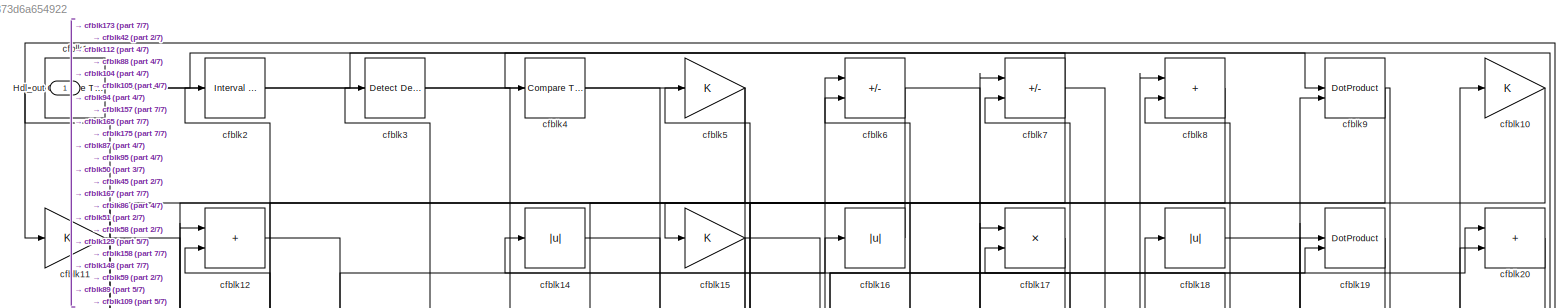
[diagram: root canvas - part 1/7, full width, top band]
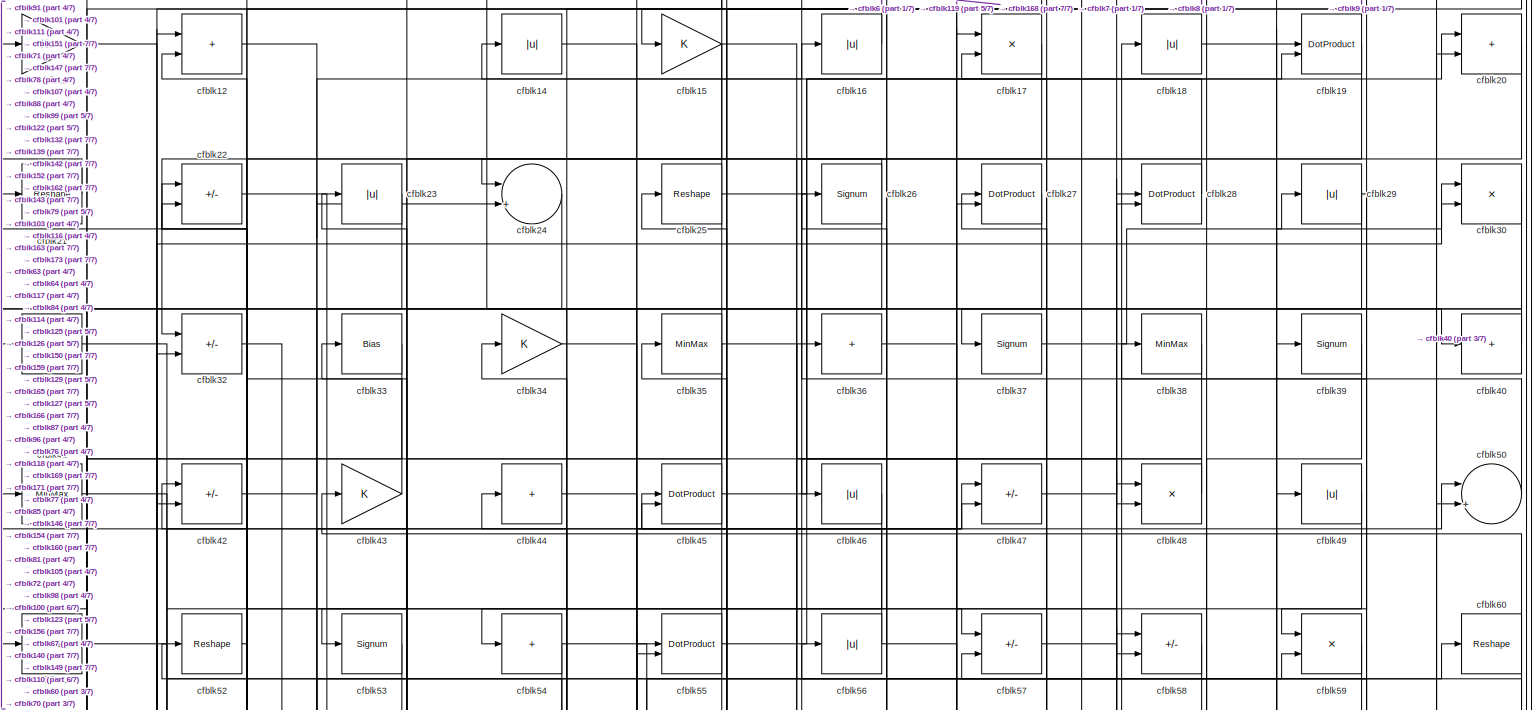
[diagram: root canvas - part 2/7, full width, top band]
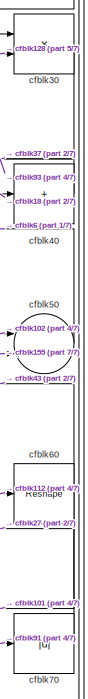
[diagram: root canvas - part 3/7, top right region]
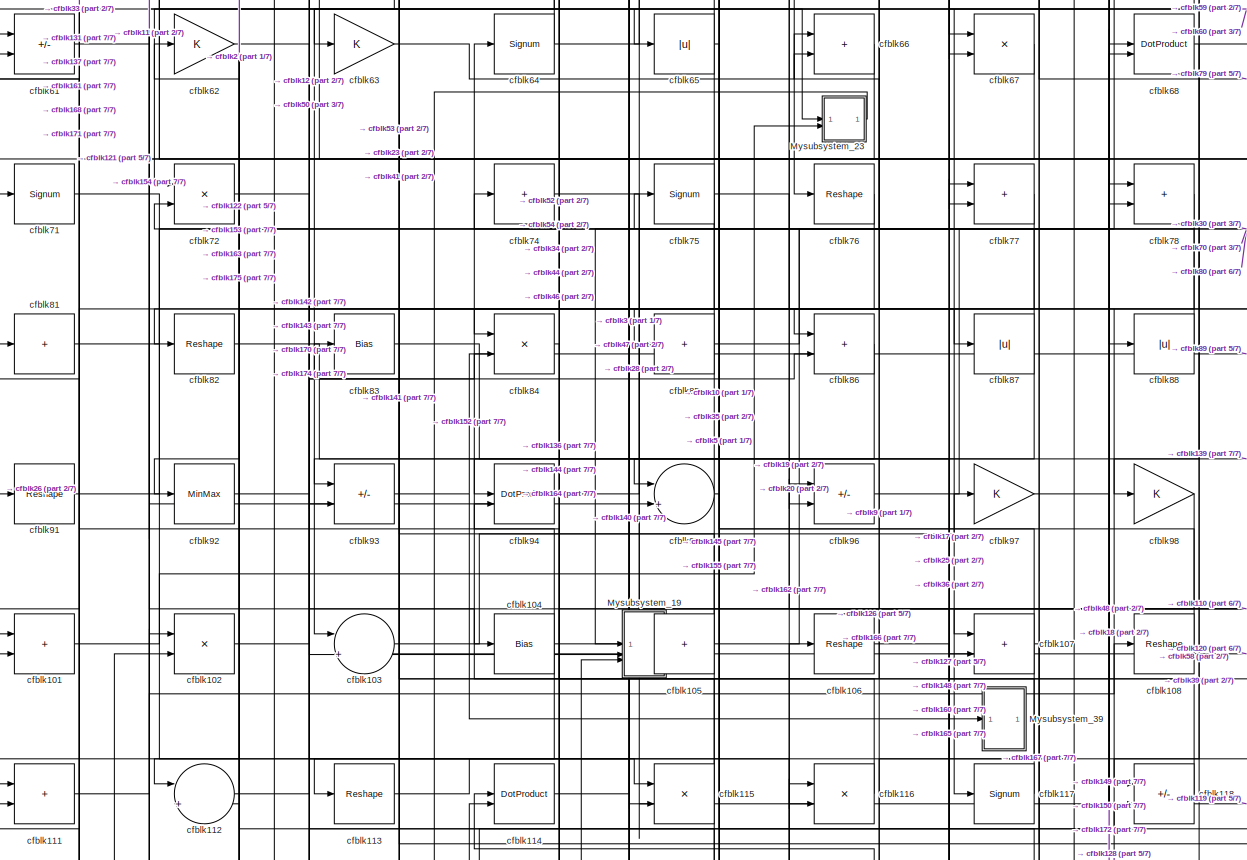
[diagram: root canvas - part 4/7, full width, middle band]
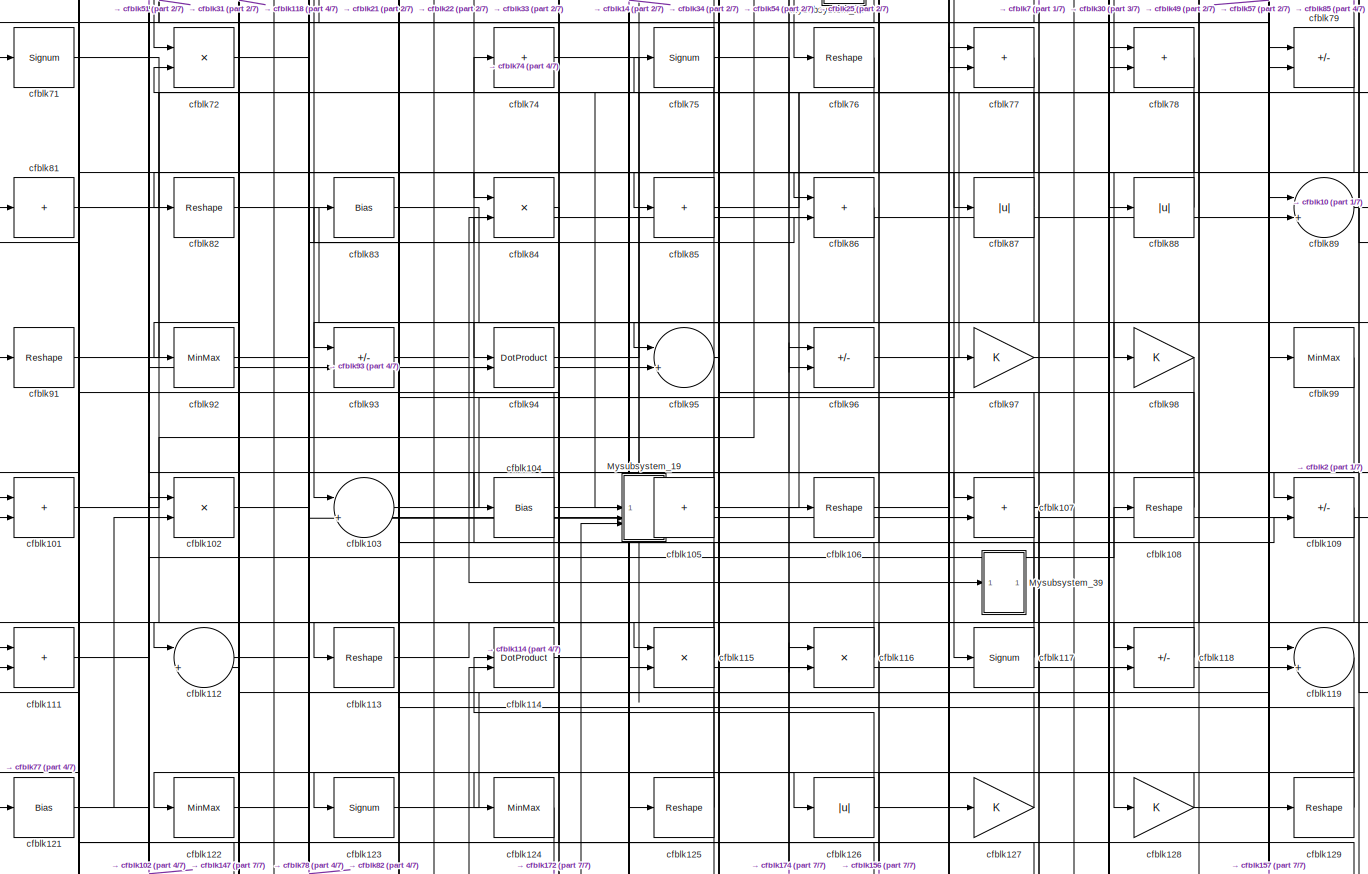
[diagram: root canvas - part 5/7, full width, middle band]
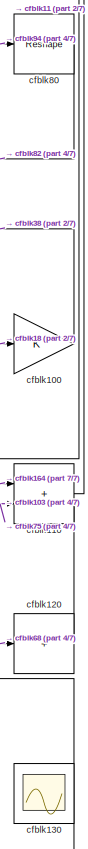
[diagram: root canvas - part 6/7, middle right region]
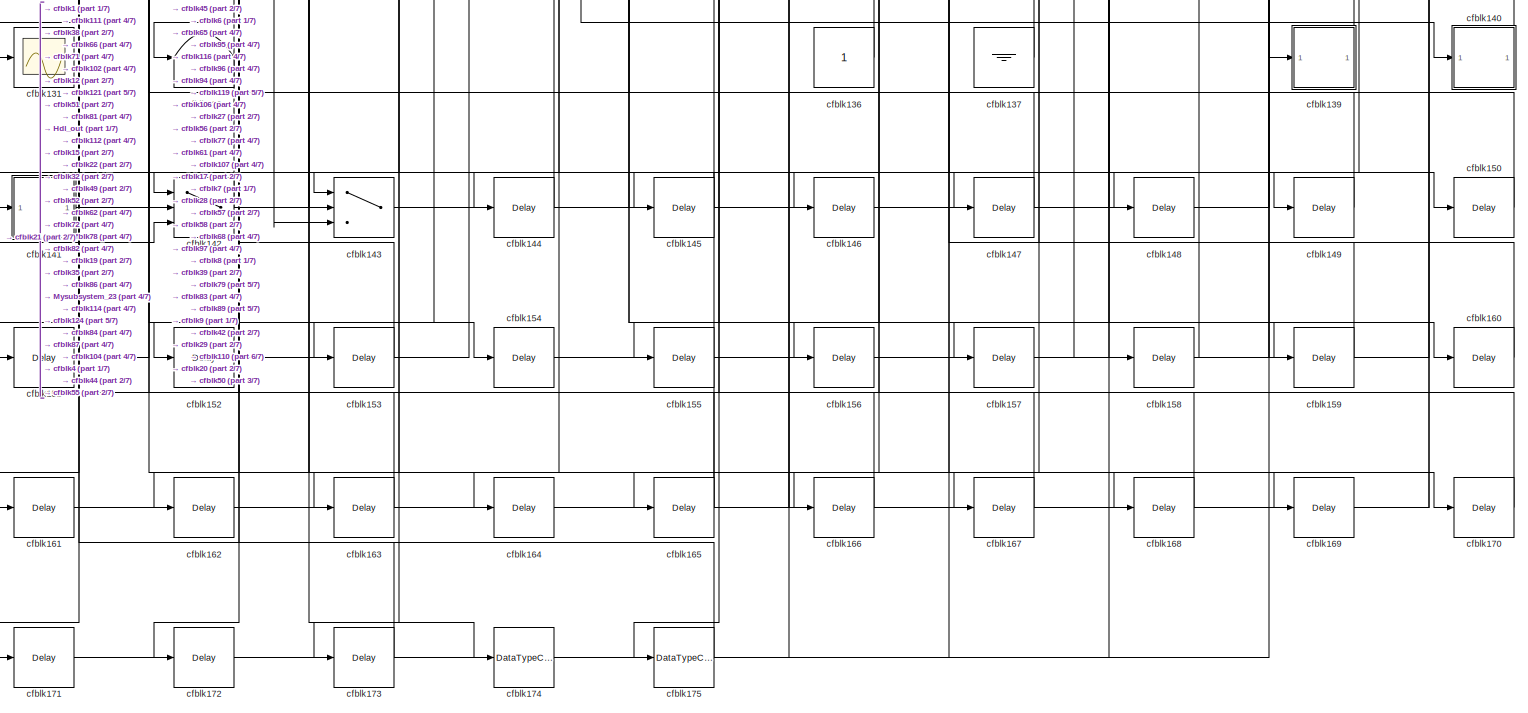
[diagram: root canvas - part 7/7, full width, bottom band]
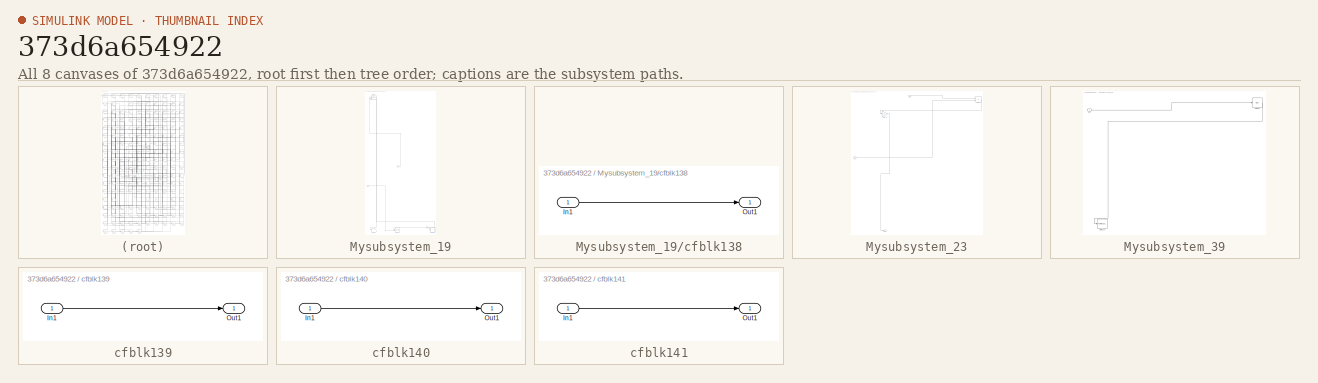
[diagram: thumbnail index - all 8 canvases of the model, root first then tree order]
MODEL slx_373d6a654922
KIND model
CONFIG AbsTol = auto
CONFIG EnableMultiTasking = off
CONFIG FixedStep = auto
CONFIG MaxStep = auto
CONFIG MinStep = auto
CONFIG RelTol = 1e-3
CONFIG SampleTimeConstraint = Unconstrained
CONFIG SolverName = VariableStepAuto
CONFIG StartTime = 0.0
CONFIG StopTime = 10.0
BLOCK [Outport] Hdl_out
  OutDataTypeStr = uint8
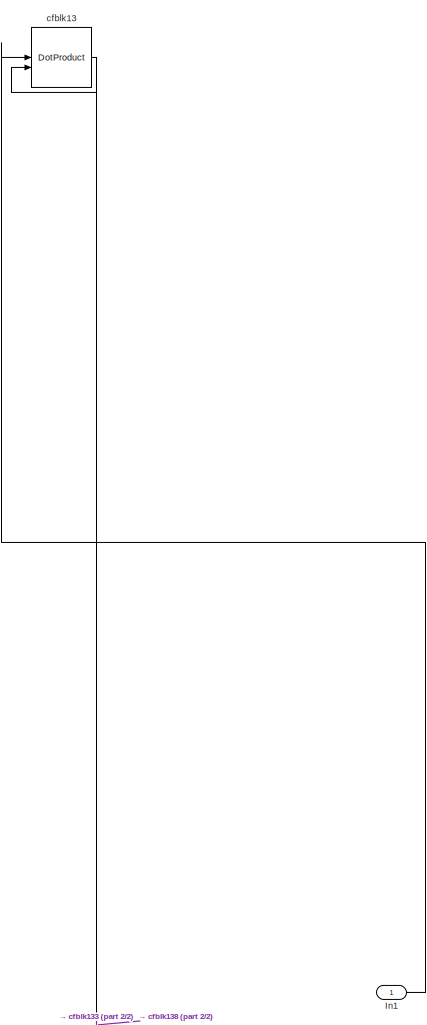
[diagram: Mysubsystem_19 - part 1/2, top left region]
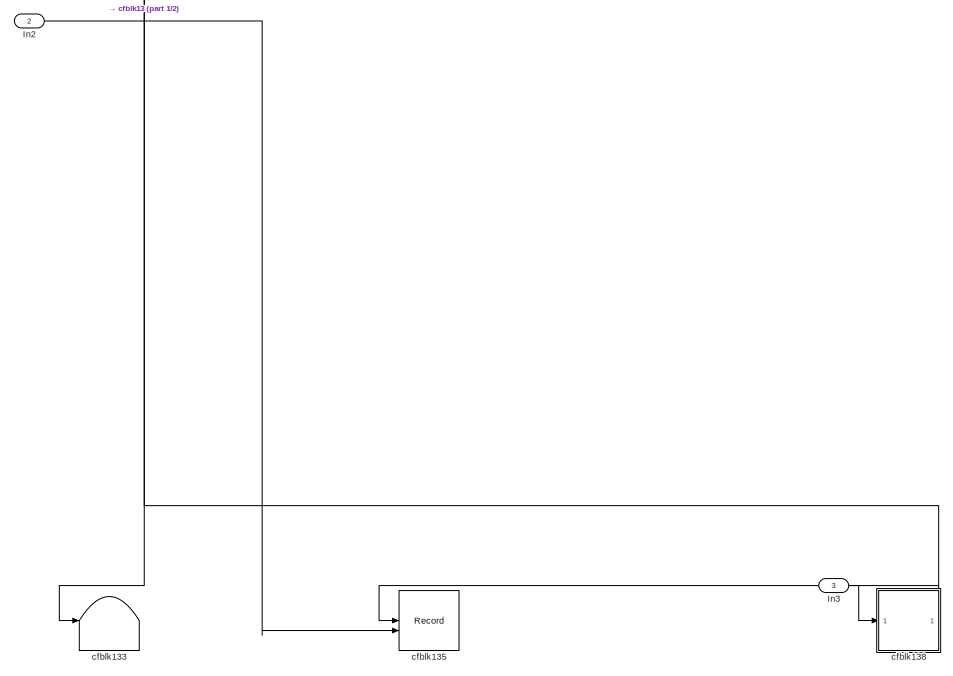
[diagram: Mysubsystem_19 - part 2/2, full width, bottom band]
BLOCK [SubSystem] Mysubsystem_19
  RTWFcnName = Mysubsystem_19
  RTWFcnNameOpts = User specified
  RTWFileNameOpts = Use function name
  RTWSystemCode = Reusable function
  TreatAsAtomicUnit = on
BLOCK [Inport] Mysubsystem_19/In1
BLOCK [Inport] Mysubsystem_19/In2
  Port = 2
BLOCK [Inport] Mysubsystem_19/In3
  Port = 3
BLOCK [DotProduct] Mysubsystem_19/cfblk13
  OutDataTypeStr = Inherit: Inherit via internal rule
BLOCK [Terminator] Mysubsystem_19/cfblk133
BLOCK [Record] Mysubsystem_19/cfblk135
  CompatibilityTag = XY
  FileSettingsInternal = {"entries":[{"content":{"excelSettings":{"content":{},"type":"Streamout.ExcelSettings"}},"type":"Streamout.FileSettingStorage","uuid":""}],"packageUris":["http:\/\/schema.mathworks.com\/mf0\/streamout_blocks\/R2020a"],"version":"1.0"}
  Layout = [1 1]
  SignalsInternal = {"entries":[{"content":{},"type":"RecordBlkView.InputSignals","uuid":""}],"packageUris":["http:\/\/schema.mathworks.com\/mf0\/streamout_blocks\/R2020a"],"version":"1.0"}
  VisualizationBindings = {"xyplotplugin":{"info":[{"series":[],"subplotID":1}]}}
  st = -1
BLOCK [SubSystem] Mysubsystem_19/cfblk138
  LibrarySourceBlock = hdlsllib/Ports &\nSubsystems/Subsystem
BLOCK [Inport] Mysubsystem_19/cfblk138/In1
BLOCK [Outport] Mysubsystem_19/cfblk138/Out1
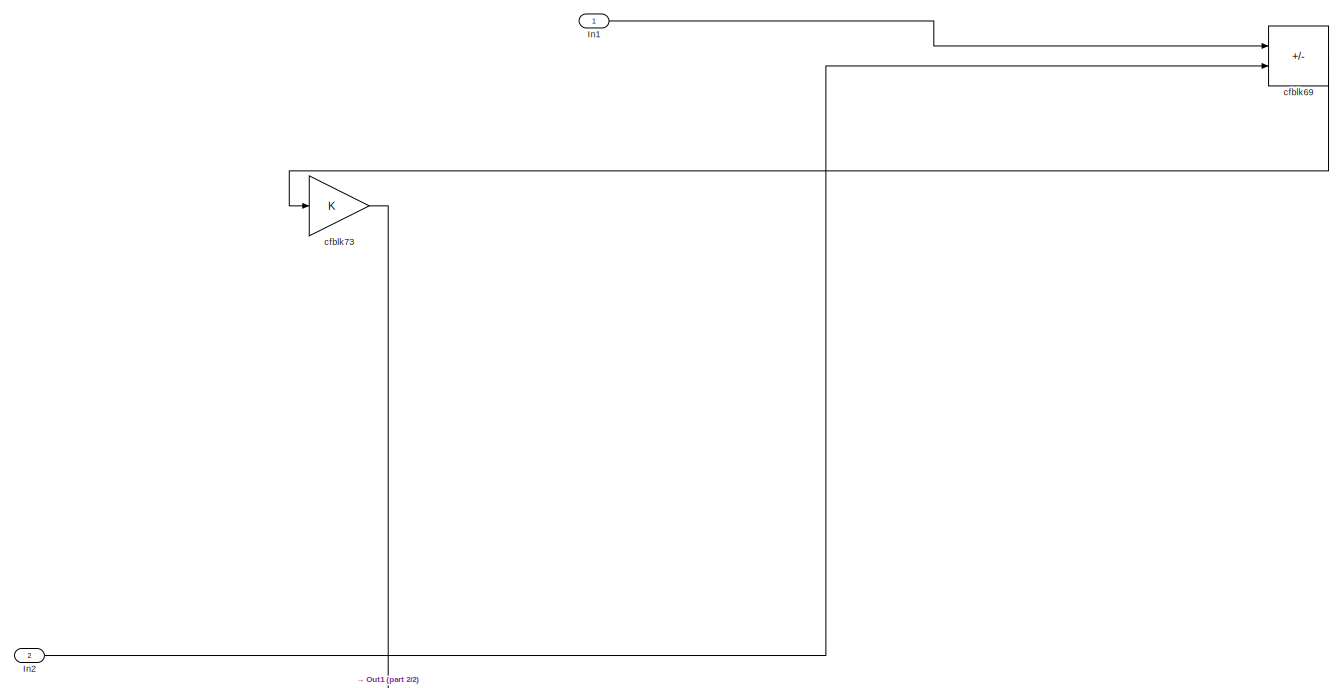
[diagram: Mysubsystem_23 - part 1/2, full width, top band]
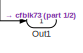
[diagram: Mysubsystem_23 - part 2/2, bottom left region]
BLOCK [SubSystem] Mysubsystem_23
  RTWFcnName = Mysubsystem_23
  RTWFcnNameOpts = User specified
  RTWFileNameOpts = Use function name
  RTWSystemCode = Reusable function
  TreatAsAtomicUnit = on
BLOCK [Inport] Mysubsystem_23/In1
BLOCK [Inport] Mysubsystem_23/In2
  Port = 2
BLOCK [Outport] Mysubsystem_23/Out1
BLOCK [Sum] Mysubsystem_23/cfblk69
  IconShape = rectangular
  Inputs = +-
BLOCK [Gain] Mysubsystem_23/cfblk73
BLOCK [SubSystem] Mysubsystem_39
  RTWFcnName = Mysubsystem_39
  RTWFcnNameOpts = User specified
  RTWFileNameOpts = Use function name
  RTWSystemCode = Reusable function
  TreatAsAtomicUnit = on
BLOCK [Inport] Mysubsystem_39/In1
BLOCK [ToWorkspace] Mysubsystem_39/cfblk134
  MaxDataPoints = inf
  SampleTime = -1
  SaveFormat = Timeseries
  VariableName = simout
BLOCK [Bias] Mysubsystem_39/cfblk90
  Bias = 0.0
  SaturateOnIntegerOverflow = off
BLOCK [Reference] cfblk1  REF=hdlsllib/Logic and Bit
Operations/Compare
To Zero
  SourceBlock = hdlsllib/Logic and Bit\nOperations/Compare\nTo Zero
  SourceType = Compare To Zero
BLOCK [Gain] cfblk10
  OutDataTypeStr = uint8
BLOCK [Gain] cfblk100
  OutDataTypeStr = uint8
BLOCK [Sum] cfblk101
  IconShape = rectangular
  OutDataTypeStr = uint8
BLOCK [Product] cfblk102
  Inputs = */
  OutDataTypeStr = uint8
  RndMeth = Zero
  SaturateOnIntegerOverflow = on
BLOCK [Sum] cfblk103
  Inputs = |++
  OutDataTypeStr = uint8
BLOCK [Bias] cfblk104
  Bias = 0.0
  SaturateOnIntegerOverflow = off
BLOCK [Sum] cfblk105
  IconShape = rectangular
  Inputs = +
  OutDataTypeStr = uint8
BLOCK [Reshape] cfblk106
BLOCK [Sum] cfblk107
  IconShape = rectangular
  OutDataTypeStr = uint8
BLOCK [Reshape] cfblk108
BLOCK [Sum] cfblk109
  IconShape = rectangular
  Inputs = +-
  OutDataTypeStr = uint8
BLOCK [Gain] cfblk11
  OutDataTypeStr = uint8
BLOCK [Sum] cfblk110
  IconShape = rectangular
  OutDataTypeStr = uint8
BLOCK [Sum] cfblk111
  IconShape = rectangular
  OutDataTypeStr = uint8
BLOCK [Sum] cfblk112
  Inputs = |++
  OutDataTypeStr = uint8
BLOCK [Reshape] cfblk113
BLOCK [DotProduct] cfblk114
  OutDataTypeStr = uint8
BLOCK [Product] cfblk115
  Inputs = */
  OutDataTypeStr = uint8
  RndMeth = Zero
  SaturateOnIntegerOverflow = on
BLOCK [Product] cfblk116
  Inputs = */
  OutDataTypeStr = uint8
  RndMeth = Zero
  SaturateOnIntegerOverflow = on
BLOCK [Signum] cfblk117
BLOCK [Sum] cfblk118
  IconShape = rectangular
  Inputs = +-
  OutDataTypeStr = uint8
BLOCK [Sum] cfblk119
  Inputs = |++
  OutDataTypeStr = uint8
BLOCK [Sum] cfblk12
  IconShape = rectangular
  OutDataTypeStr = uint8
BLOCK [Sum] cfblk120
  IconShape = rectangular
  Inputs = +
  OutDataTypeStr = uint8
BLOCK [Bias] cfblk121
  Bias = 0.0
  SaturateOnIntegerOverflow = off
BLOCK [MinMax] cfblk122
  OutDataTypeStr = uint8
BLOCK [Signum] cfblk123
BLOCK [MinMax] cfblk124
  OutDataTypeStr = uint8
BLOCK [Reshape] cfblk125
BLOCK [Abs] cfblk126
  OutDataTypeStr = uint8
  SaturateOnIntegerOverflow = off
BLOCK [Gain] cfblk127
  OutDataTypeStr = uint8
BLOCK [Gain] cfblk128
  OutDataTypeStr = uint8
BLOCK [Reshape] cfblk129
BLOCK [Scope] cfblk130
  Floating = on
  NumInputPorts = 1
  ScopeSpecificationString = Simulink.scopes.TimeScopeBlockCfg('CurrentConfiguration', extmgr.ConfigurationSet(extmgr.Configuration('Core','General UI',true,'FigureColor',[0.156862745098039 0.156862745098039 0.156862745098039]),extmgr.Configuration('Core','Source UI',true),extmgr.Configuration('Sources','WiredSimulink',true,'DataLoggingVariableName','ScopeData1','DataLoggingSaveFormat','StructureWithTime','DataLoggingLimitDat...<+2713ch>
BLOCK [Scope] cfblk131
  Floating = off
  NumInputPorts = 1
  ScopeSpecificationString = Simulink.scopes.TimeScopeBlockCfg('CurrentConfiguration', extmgr.ConfigurationSet(extmgr.Configuration('Core','General UI',true),extmgr.Configuration('Core','Source UI',true),extmgr.Configuration('Sources','WiredSimulink',true,'DataLoggingVariableName','ScopeData2','DataLoggingSaveFormat','Array','DataLoggingLimitDataPoints',true,'DataLoggingDecimation','1'),extmgr.Configuration('Visuals','Time Do...<+868ch>
BLOCK [Terminator] cfblk132
BLOCK [Constant] cfblk136
  OutDataTypeStr = uint8
  SampleTime = -1
BLOCK [Ground] cfblk137
BLOCK [SubSystem] cfblk139
  LibrarySourceBlock = hdlsllib/Ports &\nSubsystems/Subsystem
BLOCK [Inport] cfblk139/In1
BLOCK [Outport] cfblk139/Out1
BLOCK [Abs] cfblk14
  OutDataTypeStr = uint8
  SaturateOnIntegerOverflow = off
BLOCK [SubSystem] cfblk140
  LibrarySourceBlock = hdlsllib/Ports &\nSubsystems/Subsystem
BLOCK [Inport] cfblk140/In1
BLOCK [Outport] cfblk140/Out1
BLOCK [SubSystem] cfblk141
  LibrarySourceBlock = hdlsllib/Ports &\nSubsystems/Subsystem
BLOCK [Inport] cfblk141/In1
BLOCK [Outport] cfblk141/Out1
BLOCK [Switch] cfblk142
  InputSameDT = off
  OutDataTypeStr = uint8
  SaturateOnIntegerOverflow = off
BLOCK [Switch] cfblk143
  InputSameDT = off
  OutDataTypeStr = uint8
  SaturateOnIntegerOverflow = off
BLOCK [Delay] cfblk144
  InputPortMap = u0
  SampleTime = 1
BLOCK [Delay] cfblk145
  InputPortMap = u0
  SampleTime = 1
BLOCK [Delay] cfblk146
  InputPortMap = u0
  SampleTime = 1
BLOCK [Delay] cfblk147
  InputPortMap = u0
  SampleTime = 1
BLOCK [Delay] cfblk148
  InputPortMap = u0
  SampleTime = 1
BLOCK [Delay] cfblk149
  InputPortMap = u0
  SampleTime = 1
BLOCK [Gain] cfblk15
  OutDataTypeStr = uint8
BLOCK [Delay] cfblk150
  InputPortMap = u0
  SampleTime = 1
BLOCK [Delay] cfblk151
  InputPortMap = u0
  SampleTime = 1
BLOCK [Delay] cfblk152
  InputPortMap = u0
  SampleTime = 1
BLOCK [Delay] cfblk153
  InputPortMap = u0
  SampleTime = 1
BLOCK [Delay] cfblk154
  InputPortMap = u0
  SampleTime = 1
BLOCK [Delay] cfblk155
  InputPortMap = u0
  SampleTime = 1
BLOCK [Delay] cfblk156
  InputPortMap = u0
  SampleTime = 1
BLOCK [Delay] cfblk157
  InputPortMap = u0
  SampleTime = 1
BLOCK [Delay] cfblk158
  InputPortMap = u0
  SampleTime = 1
BLOCK [Delay] cfblk159
  InputPortMap = u0
  SampleTime = 1
BLOCK [Abs] cfblk16
  OutDataTypeStr = uint8
  SaturateOnIntegerOverflow = off
BLOCK [Delay] cfblk160
  InputPortMap = u0
  SampleTime = 1
BLOCK [Delay] cfblk161
  InputPortMap = u0
  SampleTime = 1
BLOCK [Delay] cfblk162
  InputPortMap = u0
  SampleTime = 1
BLOCK [Delay] cfblk163
  InputPortMap = u0
  SampleTime = 1
BLOCK [Delay] cfblk164
  InputPortMap = u0
  SampleTime = 1
BLOCK [Delay] cfblk165
  InputPortMap = u0
  SampleTime = 1
BLOCK [Delay] cfblk166
  InputPortMap = u0
  SampleTime = 1
BLOCK [Delay] cfblk167
  InputPortMap = u0
  SampleTime = 1
BLOCK [Delay] cfblk168
  InputPortMap = u0
  SampleTime = 1
BLOCK [Delay] cfblk169
  InputPortMap = u0
  SampleTime = 1
BLOCK [Product] cfblk17
  Inputs = */
  OutDataTypeStr = uint8
  RndMeth = Zero
  SaturateOnIntegerOverflow = on
BLOCK [Delay] cfblk170
  InputPortMap = u0
  SampleTime = 1
BLOCK [Delay] cfblk171
  InputPortMap = u0
  SampleTime = 1
BLOCK [Delay] cfblk172
  InputPortMap = u0
  SampleTime = 1
BLOCK [Delay] cfblk173
  InputPortMap = u0
  SampleTime = 1
BLOCK [DataTypeConversion] cfblk174
  OutDataTypeStr = uint8
  RndMeth = Floor
  SaturateOnIntegerOverflow = off
BLOCK [DataTypeConversion] cfblk175
  OutDataTypeStr = uint8
  RndMeth = Floor
  SaturateOnIntegerOverflow = off
BLOCK [Abs] cfblk18
  OutDataTypeStr = uint8
  SaturateOnIntegerOverflow = off
BLOCK [DotProduct] cfblk19
  OutDataTypeStr = uint8
BLOCK [Reference] cfblk2  REF=hdlsllib/Logic and Bit
Operations/Interval Test
  SourceBlock = hdlsllib/Logic and Bit\nOperations/Interval Test
  SourceType = Interval Test
BLOCK [Sum] cfblk20
  IconShape = rectangular
  OutDataTypeStr = uint8
BLOCK [Reshape] cfblk21
BLOCK [Sum] cfblk22
  IconShape = rectangular
  Inputs = +-
  OutDataTypeStr = uint8
BLOCK [Abs] cfblk23
  OutDataTypeStr = uint8
  SaturateOnIntegerOverflow = off
BLOCK [Sum] cfblk24
  Inputs = |++
  OutDataTypeStr = uint8
BLOCK [Reshape] cfblk25
BLOCK [Signum] cfblk26
BLOCK [DotProduct] cfblk27
  OutDataTypeStr = uint8
BLOCK [DotProduct] cfblk28
  OutDataTypeStr = uint8
BLOCK [Abs] cfblk29
  OutDataTypeStr = uint8
  SaturateOnIntegerOverflow = off
BLOCK [Reference] cfblk3  REF=simulink/Logic and Bit
Operations/Detect
Decrease
  LibrarySourceBlock = hdlsllib/Logic and Bit\nOperations/Detect\nDecrease
  SourceBlock = simulink/Logic and Bit\nOperations/Detect\nDecrease
  SourceType = Detect Decrease
BLOCK [Product] cfblk30
  Inputs = */
  OutDataTypeStr = uint8
  RndMeth = Zero
  SaturateOnIntegerOverflow = on
BLOCK [Sum] cfblk31
  IconShape = rectangular
  Inputs = +
  OutDataTypeStr = uint8
BLOCK [Sum] cfblk32
  IconShape = rectangular
  Inputs = +-
  OutDataTypeStr = uint8
BLOCK [Bias] cfblk33
  Bias = 0.0
  SaturateOnIntegerOverflow = off
BLOCK [Gain] cfblk34
  OutDataTypeStr = uint8
BLOCK [MinMax] cfblk35
  OutDataTypeStr = uint8
BLOCK [Sum] cfblk36
  IconShape = rectangular
  Inputs = +
  OutDataTypeStr = uint8
BLOCK [Signum] cfblk37
BLOCK [MinMax] cfblk38
  OutDataTypeStr = uint8
BLOCK [Signum] cfblk39
BLOCK [Reference] cfblk4  REF=hdlsllib/Logic and Bit
Operations/Compare
To Constant
  SourceBlock = hdlsllib/Logic and Bit\nOperations/Compare\nTo Constant
  SourceType = Compare To Constant
BLOCK [Sum] cfblk40
  IconShape = rectangular
  Inputs = +
  OutDataTypeStr = uint8
BLOCK [MinMax] cfblk41
  OutDataTypeStr = uint8
BLOCK [Sum] cfblk42
  IconShape = rectangular
  Inputs = +-
  OutDataTypeStr = uint8
BLOCK [Gain] cfblk43
  OutDataTypeStr = uint8
BLOCK [Sum] cfblk44
  IconShape = rectangular
  Inputs = +
  OutDataTypeStr = uint8
BLOCK [DotProduct] cfblk45
  OutDataTypeStr = uint8
BLOCK [Abs] cfblk46
  OutDataTypeStr = uint8
  SaturateOnIntegerOverflow = off
BLOCK [Sum] cfblk47
  IconShape = rectangular
  Inputs = +-
  OutDataTypeStr = uint8
BLOCK [Product] cfblk48
  Inputs = */
  OutDataTypeStr = uint8
  RndMeth = Zero
  SaturateOnIntegerOverflow = on
BLOCK [Abs] cfblk49
  OutDataTypeStr = uint8
  SaturateOnIntegerOverflow = off
BLOCK [Gain] cfblk5
  OutDataTypeStr = uint8
BLOCK [Sum] cfblk50
  Inputs = |++
  OutDataTypeStr = uint8
BLOCK [Reshape] cfblk51
BLOCK [Reshape] cfblk52
BLOCK [Signum] cfblk53
BLOCK [Sum] cfblk54
  IconShape = rectangular
  Inputs = +
  OutDataTypeStr = uint8
BLOCK [DotProduct] cfblk55
  OutDataTypeStr = uint8
BLOCK [Abs] cfblk56
  OutDataTypeStr = uint8
  SaturateOnIntegerOverflow = off
BLOCK [Sum] cfblk57
  IconShape = rectangular
  Inputs = +-
  OutDataTypeStr = uint8
BLOCK [Sum] cfblk58
  IconShape = rectangular
  Inputs = +-
  OutDataTypeStr = uint8
BLOCK [Product] cfblk59
  Inputs = */
  OutDataTypeStr = uint8
  RndMeth = Zero
  SaturateOnIntegerOverflow = on
BLOCK [Sum] cfblk6
  IconShape = rectangular
  Inputs = +-
  OutDataTypeStr = uint8
BLOCK [Reshape] cfblk60
BLOCK [Sum] cfblk61
  IconShape = rectangular
  Inputs = +-
  OutDataTypeStr = uint8
BLOCK [Gain] cfblk62
  OutDataTypeStr = uint8
BLOCK [Gain] cfblk63
  OutDataTypeStr = uint8
BLOCK [Signum] cfblk64
BLOCK [Abs] cfblk65
  OutDataTypeStr = uint8
  SaturateOnIntegerOverflow = off
BLOCK [Sum] cfblk66
  IconShape = rectangular
  OutDataTypeStr = uint8
BLOCK [Product] cfblk67
  Inputs = */
  OutDataTypeStr = uint8
  RndMeth = Zero
  SaturateOnIntegerOverflow = on
BLOCK [DotProduct] cfblk68
  OutDataTypeStr = uint8
BLOCK [Sum] cfblk7
  IconShape = rectangular
  Inputs = +-
  OutDataTypeStr = uint8
BLOCK [Abs] cfblk70
  OutDataTypeStr = uint8
  SaturateOnIntegerOverflow = off
BLOCK [Signum] cfblk71
BLOCK [Product] cfblk72
  Inputs = */
  OutDataTypeStr = uint8
  RndMeth = Zero
  SaturateOnIntegerOverflow = on
BLOCK [Sum] cfblk74
  IconShape = rectangular
  Inputs = +
  OutDataTypeStr = uint8
BLOCK [Signum] cfblk75
BLOCK [Reshape] cfblk76
BLOCK [Sum] cfblk77
  IconShape = rectangular
  OutDataTypeStr = uint8
BLOCK [Sum] cfblk78
  IconShape = rectangular
  OutDataTypeStr = uint8
BLOCK [Sum] cfblk79
  IconShape = rectangular
  Inputs = +-
  OutDataTypeStr = uint8
BLOCK [Sum] cfblk8
  IconShape = rectangular
  OutDataTypeStr = uint8
BLOCK [Reshape] cfblk80
BLOCK [Sum] cfblk81
  IconShape = rectangular
  Inputs = +
  OutDataTypeStr = uint8
BLOCK [Reshape] cfblk82
BLOCK [Bias] cfblk83
  Bias = 0.0
  SaturateOnIntegerOverflow = off
BLOCK [Product] cfblk84
  Inputs = */
  OutDataTypeStr = uint8
  RndMeth = Zero
  SaturateOnIntegerOverflow = on
BLOCK [Sum] cfblk85
  IconShape = rectangular
  Inputs = +
  OutDataTypeStr = uint8
BLOCK [Sum] cfblk86
  IconShape = rectangular
  OutDataTypeStr = uint8
BLOCK [Abs] cfblk87
  OutDataTypeStr = uint8
  SaturateOnIntegerOverflow = off
BLOCK [Abs] cfblk88
  OutDataTypeStr = uint8
  SaturateOnIntegerOverflow = off
BLOCK [Sum] cfblk89
  Inputs = |++
  OutDataTypeStr = uint8
BLOCK [DotProduct] cfblk9
  OutDataTypeStr = uint8
BLOCK [Reshape] cfblk91
BLOCK [MinMax] cfblk92
  OutDataTypeStr = uint8
BLOCK [Sum] cfblk93
  IconShape = rectangular
  Inputs = +-
  OutDataTypeStr = uint8
BLOCK [DotProduct] cfblk94
  OutDataTypeStr = uint8
BLOCK [Sum] cfblk95
  Inputs = |++
  OutDataTypeStr = uint8
BLOCK [Sum] cfblk96
  IconShape = rectangular
  Inputs = +-
  OutDataTypeStr = uint8
BLOCK [Gain] cfblk97
  OutDataTypeStr = uint8
BLOCK [Gain] cfblk98
  OutDataTypeStr = uint8
BLOCK [MinMax] cfblk99
  OutDataTypeStr = uint8
LINE Mysubsystem_19/In1:1 -> Mysubsystem_19/cfblk13:1
LINE Mysubsystem_19/In2:1 -> Mysubsystem_19/cfblk135:2
LINE Mysubsystem_19/In3:1 -> Mysubsystem_19/cfblk138:1
LINE Mysubsystem_19/cfblk138/In1:1 -> Mysubsystem_19/cfblk138/Out1:1
NET Mysubsystem_19/cfblk138:1 -> Mysubsystem_19/cfblk135:1, Mysubsystem_19/cfblk13:2
LINE Mysubsystem_19/cfblk13:1 -> Mysubsystem_19/cfblk133:1
LINE Mysubsystem_23/In1:1 -> Mysubsystem_23/cfblk69:1
LINE Mysubsystem_23/In2:1 -> Mysubsystem_23/cfblk69:2
LINE Mysubsystem_23/cfblk69:1 -> Mysubsystem_23/cfblk73:1
LINE Mysubsystem_23/cfblk73:1 -> Mysubsystem_23/Out1:1
LINE Mysubsystem_23:1 -> cfblk153:1
LINE Mysubsystem_39/In1:1 -> Mysubsystem_39/cfblk90:1
LINE Mysubsystem_39/cfblk90:1 -> Mysubsystem_39/cfblk134:1
LINE cfblk100:1 -> cfblk38:1
LINE cfblk101:1 -> Mysubsystem_23:2
LINE cfblk102:1 -> cfblk50:1
LINE cfblk103:1 -> cfblk97:1
NET cfblk104:1 -> Mysubsystem_19:3, cfblk131:1, cfblk140:1, cfblk3:1, cfblk61:2
NET cfblk105:1 -> cfblk18:1, cfblk83:1
LINE cfblk106:1 -> cfblk148:1
NET cfblk107:1 -> cfblk166:1, cfblk167:1, cfblk35:1
NET cfblk108:1 -> Mysubsystem_19:1, cfblk75:1
LINE cfblk109:1 -> cfblk123:1
LINE cfblk10:1 -> cfblk95:1
LINE cfblk110:1 -> cfblk11:1
LINE cfblk111:1 -> cfblk108:1
LINE cfblk112:1 -> cfblk60:1
LINE cfblk113:1 -> cfblk115:1
LINE cfblk114:1 -> cfblk47:1
LINE cfblk115:1 -> cfblk64:1
LINE cfblk116:1 -> cfblk23:1
NET cfblk117:1 -> cfblk41:1, cfblk44:1, cfblk74:1
NET cfblk118:1 -> cfblk26:1, cfblk34:1
LINE cfblk119:1 -> cfblk156:1
LINE cfblk11:1 -> cfblk78:2
LINE cfblk120:1 -> cfblk103:2
NET cfblk121:1 -> cfblk102:2, cfblk147:1
NET cfblk122:1 -> cfblk118:2, cfblk22:1
LINE cfblk123:1 -> cfblk49:1
LINE cfblk124:1 -> cfblk172:1
LINE cfblk125:1 -> cfblk21:1
NET cfblk126:1 -> cfblk109:2, cfblk114:1
LINE cfblk127:1 -> cfblk25:1
NET cfblk128:1 -> cfblk122:1, cfblk30:2
NET cfblk129:1 -> cfblk33:1, cfblk7:2
LINE cfblk12:1 -> cfblk116:2
LINE cfblk136:1 -> cfblk94:2
LINE cfblk137:1 -> cfblk61:1
LINE cfblk139/In1:1 -> cfblk139/Out1:1
LINE cfblk139:1 -> cfblk42:1
LINE cfblk140/In1:1 -> cfblk140/Out1:1
LINE cfblk140:1 -> cfblk56:1
LINE cfblk141/In1:1 -> cfblk141/Out1:1
LINE cfblk141:1 -> cfblk146:1
NET cfblk142:1 -> cfblk81:1, cfblk86:2
NET cfblk143:1 -> cfblk39:1, cfblk55:2
LINE cfblk144:1 -> cfblk142:2
LINE cfblk145:1 -> cfblk143:1
LINE cfblk146:1 -> cfblk28:1
LINE cfblk147:1 -> cfblk12:1
LINE cfblk148:1 -> cfblk9:2
LINE cfblk149:1 -> cfblk78:1
LINE cfblk14:1 -> cfblk125:1
LINE cfblk150:1 -> cfblk55:1
LINE cfblk151:1 -> cfblk32:2
LINE cfblk152:1 -> cfblk114:2
LINE cfblk153:1 -> cfblk72:2
LINE cfblk154:1 -> cfblk58:1
LINE cfblk155:1 -> cfblk50:2
LINE cfblk156:1 -> cfblk19:1
LINE cfblk157:1 -> cfblk79:1
LINE cfblk158:1 -> cfblk8:2
LINE cfblk159:1 -> cfblk17:2
NET cfblk15:1 -> cfblk152:1, cfblk48:2
LINE cfblk160:1 -> cfblk77:1
LINE cfblk161:1 -> cfblk116:1
LINE cfblk162:1 -> cfblk96:1
LINE cfblk163:1 -> cfblk112:2
LINE cfblk164:1 -> cfblk110:1
NET cfblk165:1 -> Hdl_out:1, cfblk22:2
LINE cfblk166:1 -> cfblk45:2
LINE cfblk167:1 -> cfblk6:2
LINE cfblk168:1 -> cfblk111:2
LINE cfblk169:1 -> cfblk20:2
LINE cfblk16:1 -> cfblk15:1
LINE cfblk170:1 -> cfblk102:1
LINE cfblk171:1 -> cfblk27:2
LINE cfblk172:1 -> cfblk68:2
LINE cfblk173:1 -> cfblk1:1
NET cfblk174:1 -> cfblk106:1, cfblk89:1
LINE cfblk175:1 -> cfblk62:1
LINE cfblk17:1 -> cfblk32:1
NET cfblk18:1 -> cfblk100:1, cfblk40:1
NET cfblk19:1 -> cfblk173:1, cfblk96:2
LINE cfblk1:1 -> cfblk9:1
LINE cfblk20:1 -> cfblk76:1
LINE cfblk21:1 -> cfblk142:3
NET cfblk22:1 -> cfblk24:2, cfblk79:2
LINE cfblk23:1 -> cfblk111:1
LINE cfblk24:1 -> cfblk31:1
LINE cfblk25:1 -> cfblk67:1
NET cfblk26:1 -> cfblk24:1, cfblk91:1
LINE cfblk27:1 -> cfblk54:1
LINE cfblk28:1 -> cfblk14:1
NET cfblk29:1 -> cfblk149:1, cfblk53:1
LINE cfblk2:1 -> cfblk109:1
LINE cfblk30:1 -> cfblk93:2
LINE cfblk31:1 -> cfblk99:1
NET cfblk32:1 -> cfblk132:1, cfblk143:3
NET cfblk33:1 -> cfblk101:1, cfblk71:1
LINE cfblk34:1 -> cfblk126:1
NET cfblk35:1 -> cfblk163:1, cfblk87:1
LINE cfblk36:1 -> cfblk77:2
LINE cfblk37:1 -> cfblk29:1
LINE cfblk38:1 -> cfblk151:1
LINE cfblk39:1 -> cfblk98:1
LINE cfblk3:1 -> cfblk105:1
LINE cfblk40:1 -> cfblk37:1
NET cfblk41:1 -> cfblk107:2, cfblk57:1, cfblk88:1
LINE cfblk42:1 -> cfblk16:1
LINE cfblk43:1 -> cfblk12:2
LINE cfblk44:1 -> cfblk159:1
LINE cfblk45:1 -> cfblk8:1
LINE cfblk46:1 -> cfblk84:1
LINE cfblk47:1 -> cfblk20:1
LINE cfblk48:1 -> cfblk46:1
LINE cfblk49:1 -> cfblk162:1
LINE cfblk4:1 -> cfblk157:1
LINE cfblk50:1 -> cfblk6:1
NET cfblk51:1 -> cfblk119:1, cfblk168:1, cfblk59:2, cfblk7:1
LINE cfblk52:1 -> cfblk142:1
LINE cfblk53:1 -> cfblk103:1
NET cfblk54:1 -> cfblk129:1, cfblk63:1
NET cfblk55:1 -> cfblk19:2, cfblk47:2
NET cfblk56:1 -> cfblk169:1, cfblk45:1
LINE cfblk57:1 -> cfblk160:1
LINE cfblk58:1 -> cfblk72:1
NET cfblk59:1 -> cfblk117:1, cfblk67:2
LINE cfblk5:1 -> cfblk94:1
NET cfblk60:1 -> cfblk101:2, cfblk43:1
NET cfblk61:1 -> Mysubsystem_23:1, cfblk154:1, cfblk65:1
LINE cfblk62:1 -> cfblk174:1
LINE cfblk63:1 -> cfblk66:2
NET cfblk64:1 -> cfblk28:2, cfblk36:1, cfblk52:1
LINE cfblk65:1 -> cfblk155:1
LINE cfblk66:1 -> cfblk161:1
LINE cfblk67:1 -> cfblk93:1
NET cfblk68:1 -> cfblk118:1, cfblk120:1
NET cfblk6:1 -> cfblk175:1, cfblk58:2
LINE cfblk70:1 -> cfblk27:1
NET cfblk71:1 -> cfblk115:2, cfblk171:1
NET cfblk72:1 -> cfblk104:1, cfblk170:1
LINE cfblk74:1 -> cfblk119:2
NET cfblk75:1 -> cfblk110:2, cfblk92:1
LINE cfblk76:1 -> cfblk113:1
LINE cfblk77:1 -> cfblk121:1
NET cfblk78:1 -> cfblk128:1, cfblk143:2
NET cfblk79:1 -> cfblk57:2, cfblk85:1
NET cfblk7:1 -> cfblk158:1, cfblk42:2, cfblk4:1
LINE cfblk80:1 -> cfblk82:1
NET cfblk81:1 -> cfblk48:1, cfblk95:2
NET cfblk82:1 -> cfblk127:1, cfblk165:1
LINE cfblk83:1 -> cfblk139:1
LINE cfblk84:1 -> cfblk144:1
LINE cfblk85:1 -> cfblk17:1
LINE cfblk86:1 -> cfblk141:1
NET cfblk87:1 -> cfblk164:1, cfblk5:1
NET cfblk88:1 -> cfblk2:1, cfblk66:1
LINE cfblk89:1 -> cfblk10:1
LINE cfblk8:1 -> cfblk51:1
NET cfblk91:1 -> cfblk30:1, cfblk70:1
NET cfblk92:1 -> Mysubsystem_19:2, cfblk84:2
NET cfblk93:1 -> Mysubsystem_39:1, cfblk89:2
LINE cfblk94:1 -> cfblk80:1
LINE cfblk95:1 -> cfblk145:1
LINE cfblk96:1 -> cfblk68:1
LINE cfblk97:1 -> cfblk150:1
LINE cfblk98:1 -> cfblk107:1
LINE cfblk99:1 -> cfblk124:1
NET cfblk9:1 -> cfblk112:1, cfblk59:1, cfblk86:1
note: NET lines group one-source signal fan-out (src -> all destinations, sorted); 1:1 wires keep LINE
